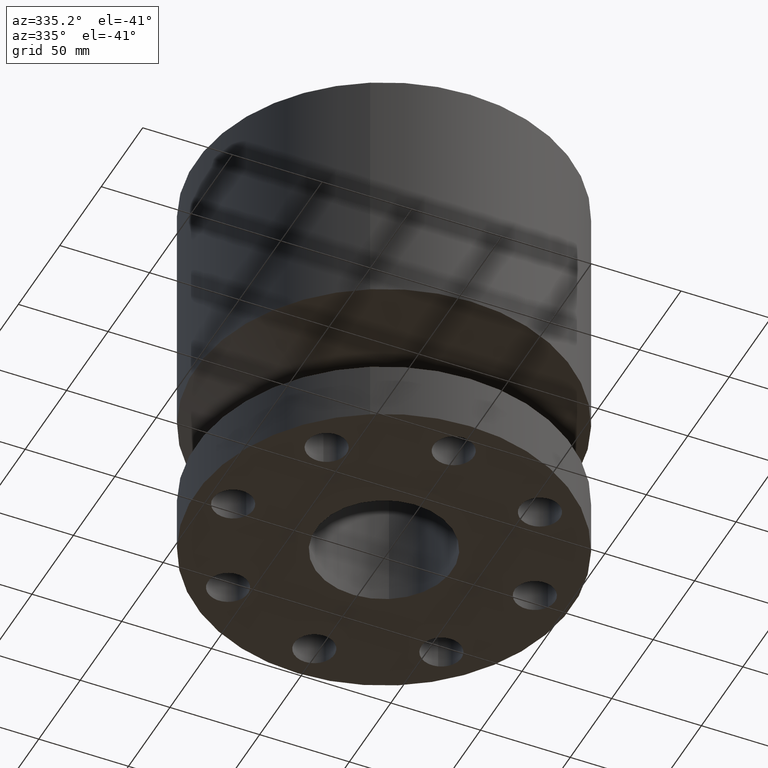
[diagram: clean part render]
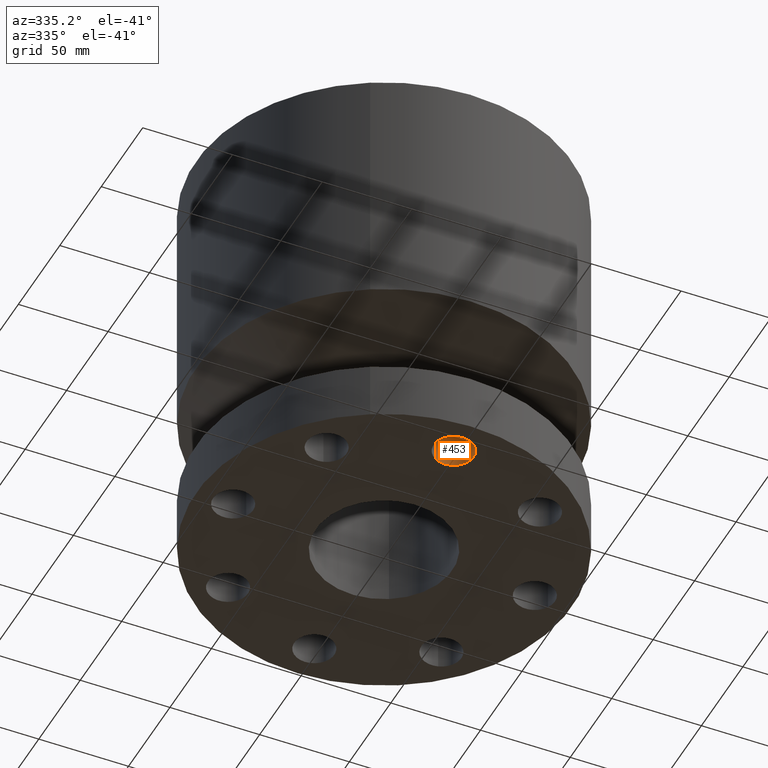
[diagram: same view with one face highlighted and labeled with its STEP entity id]
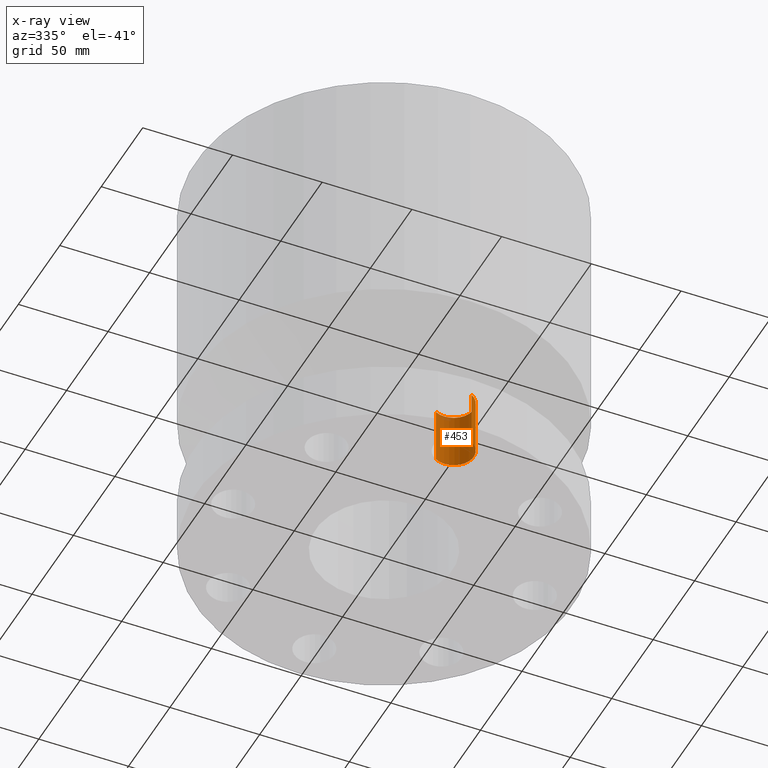
[diagram: x-ray of the same camera — body ghosted, the highlighted face saturated]
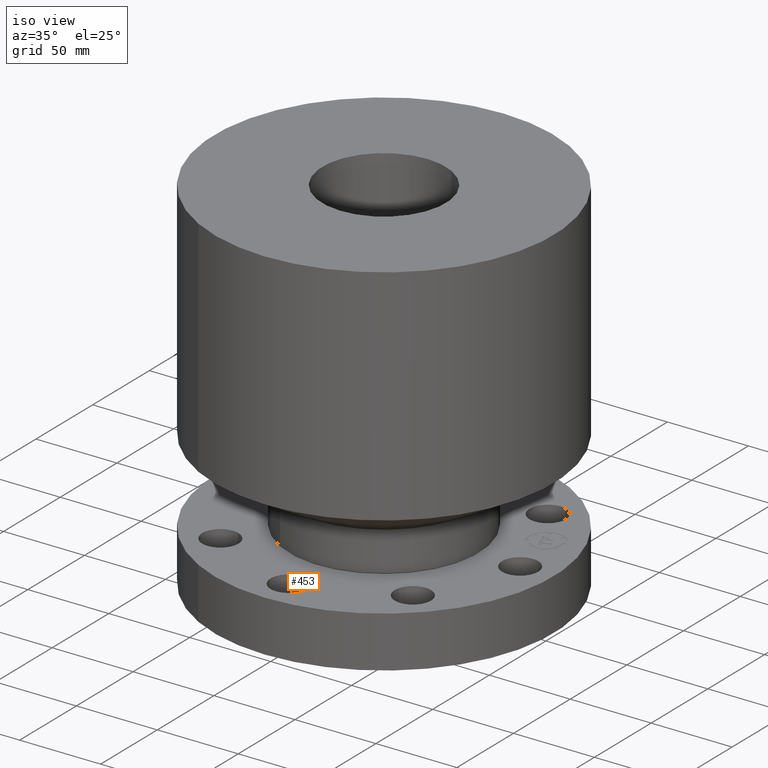
[diagram: same view with one face highlighted and labeled with its STEP entity id]
A machine part, auxiliary view. The second image highlights one B-rep face of the part: STEP entity #453.
The next image is the same camera in x-ray: the body ghosted, the highlighted face saturated — about 2% of this face is hidden behind the body in this view.
A second angle (iso view) of the same face is appended — the face is thin or edge-on in the first view.
In plain terms, the highlighted cylindrical surface (edge-blend (fillet) strip) has radius 11.176 mm, axis along (-0, 0, 1).
Its self-contained STEP definition (entity closure, byte-faithful):
#145=AXIS2_PLACEMENT_3D('Circle Axis2P3D',#143,#144,$) ;
#414=AXIS2_PLACEMENT_3D('Cylinder Axis2P3D',#411,#412,#413) ;
#444=AXIS2_PLACEMENT_3D('Circle Axis2P3D',#442,#443,$) ;
#143=CARTESIAN_POINT('Axis2P3D Location',(-1.04902962957E-016,-3.31000000001,1.25000000001)) ;
#147=CARTESIAN_POINT('Vertex',(-0.210947236987,-2.92386367278,1.25000000001)) ;
#149=CARTESIAN_POINT('Vertex',(0.210947236987,-3.69613632725,1.25000000001)) ;
#411=CARTESIAN_POINT('Axis2P3D Location',(-3.56803423843E-016,-3.31000000001,0.00393700787402)) ;
#416=CARTESIAN_POINT('Line Origine',(0.210947236987,-3.69613632725,0.625000000003)) ;
#420=CARTESIAN_POINT('Vertex',(0.210947236987,-3.69613632725,2.2401153548E-016)) ;
#427=CARTESIAN_POINT('Vertex',(-0.210947236987,-2.92386367278,2.2401153548E-016)) ;
#430=CARTESIAN_POINT('Line Origine',(-0.210947236987,-2.92386367278,0.625000000003)) ;
#442=CARTESIAN_POINT('Axis2P3D Location',(-3.56803423843E-016,-3.31000000001,0.)) ;
#144=DIRECTION('Axis2P3D Direction',(0.,0.,-0.0393700787402)) ;
#412=DIRECTION('Axis2P3D Direction',(-0.,0.,0.0393700787402)) ;
#413=DIRECTION('Axis2P3D XDirection',(0.0188750212049,-0.0345504945626,0.)) ;
#417=DIRECTION('Vector Direction',(0.,0.,0.0393700787402)) ;
#431=DIRECTION('Vector Direction',(0.,0.,0.0393700787402)) ;
#443=DIRECTION('Axis2P3D Direction',(-0.,0.,0.0393700787402)) ;
#418=VECTOR('Line Direction',#417,0.0393700787402) ;
#432=VECTOR('Line Direction',#431,0.0393700787402) ;
#448=ORIENTED_EDGE('',*,*,#434,.T.) ;
#449=ORIENTED_EDGE('',*,*,#446,.T.) ;
#450=ORIENTED_EDGE('',*,*,#422,.F.) ;
#451=ORIENTED_EDGE('',*,*,#151,.F.) ;
#453=ADVANCED_FACE('PartBody',(#452),#415,.F.) ;
#146=CIRCLE('generated circle',#145,0.440000000002) ;
#445=CIRCLE('generated circle',#444,0.440000000002) ;
#415=CYLINDRICAL_SURFACE('generated cylinder',#414,0.440000000002) ;
#151=EDGE_CURVE('',#148,#150,#146,.T.) ;
#422=EDGE_CURVE('',#150,#421,#419,.F.) ;
#434=EDGE_CURVE('',#148,#428,#433,.F.) ;
#446=EDGE_CURVE('',#428,#421,#445,.F.) ;
#447=EDGE_LOOP('',(#448,#449,#450,#451)) ;
#452=FACE_OUTER_BOUND('',#447,.T.) ;
#419=LINE('Line',#416,#418) ;
#433=LINE('Line',#430,#432) ;
#148=VERTEX_POINT('',#147) ;
#150=VERTEX_POINT('',#149) ;
#421=VERTEX_POINT('',#420) ;
#428=VERTEX_POINT('',#427) ;